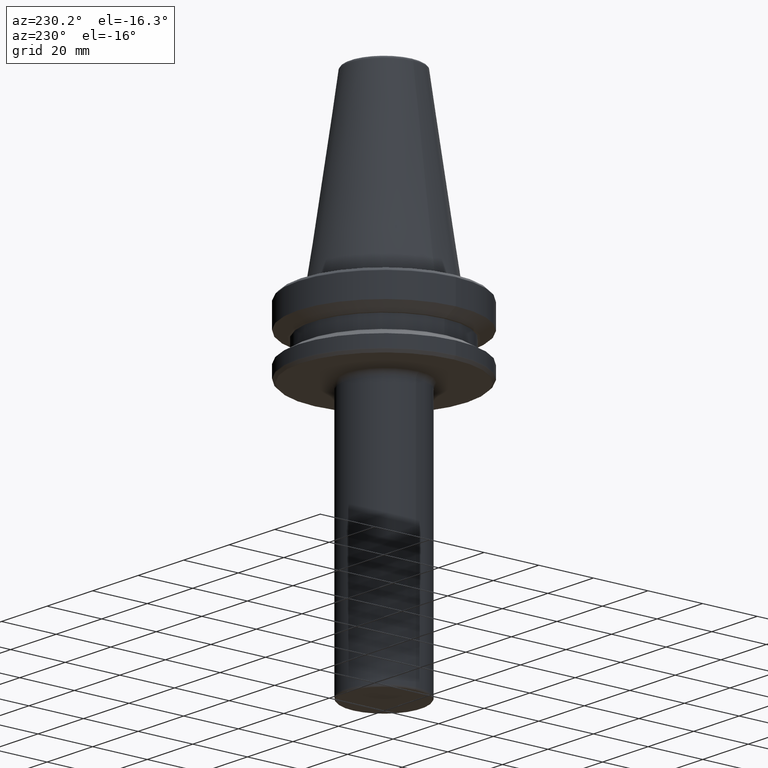
[diagram: clean part render]
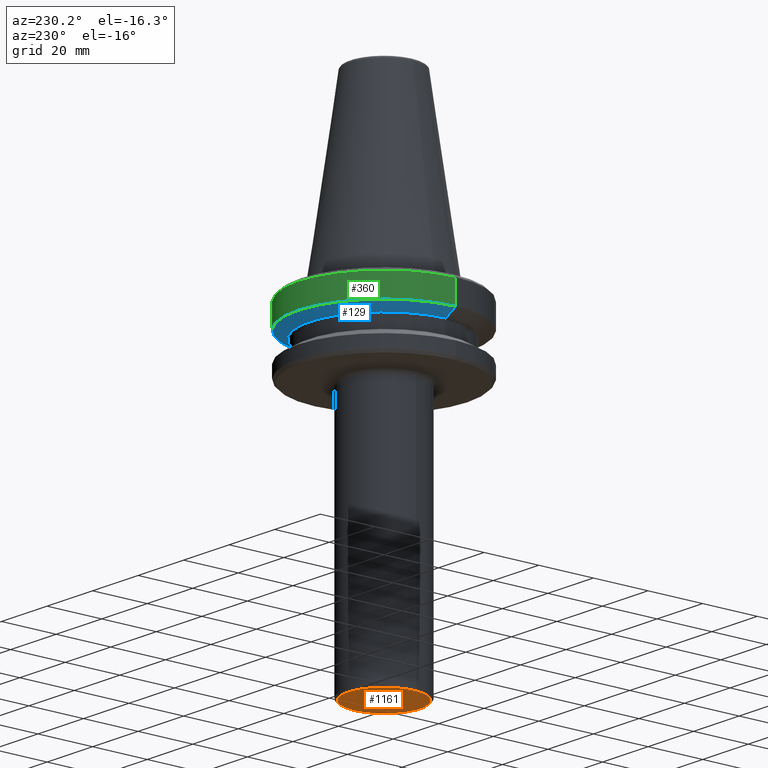
[diagram: same view with three faces highlighted in distinct colors, each labeled with its STEP entity id]
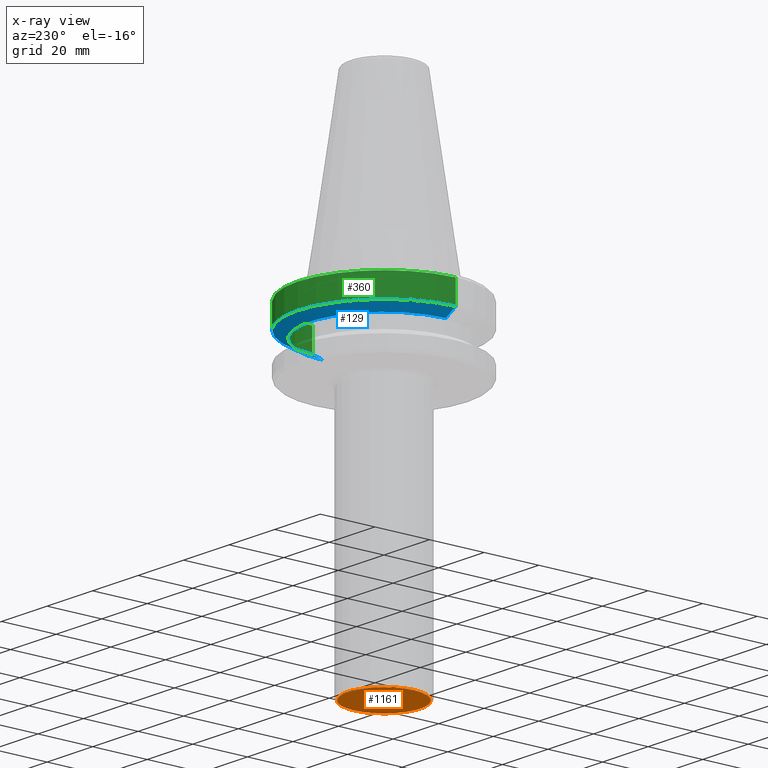
[diagram: x-ray of the same camera — body ghosted, the three highlighted faces saturated]
A machine part, auxiliary view with three faces highlighted in distinct colors.
The next image is the same camera in x-ray (body ghosted, the three faces saturated) — at least one of them is partly hidden behind the body in this view.
Their STEP definitions:

[orange] entity #1161 — the highlighted planar face has unit normal (0, -0, 1).
#3 = CARTESIAN_POINT ( 'NONE',  ( -13.20000000000000100, 1.665519646840400600E-015, -120.0000000000000100 ) ) ;
#16 = ORIENTED_EDGE ( 'NONE', *, *, #1103, .F. ) ;
#48 = CARTESIAN_POINT ( 'NONE',  ( 13.20000000000000100, 0.0000000000000000000, -120.0000000000000100 ) ) ;
#74 = VERTEX_POINT ( 'NONE', #48 ) ;
#219 = DIRECTION ( 'NONE',  ( -0.0000000000000000000, -0.0000000000000000000, 1.000000000000000000 ) ) ;
#236 = DIRECTION ( 'NONE',  ( 1.000000000000000000, 0.0000000000000000000, 0.0000000000000000000 ) ) ;
#276 = AXIS2_PLACEMENT_3D ( 'NONE', #295, #792, #236 ) ;
#285 = DIRECTION ( 'NONE',  ( -0.0000000000000000000, -0.0000000000000000000, 1.000000000000000000 ) ) ;
#295 = CARTESIAN_POINT ( 'NONE',  ( 0.0000000000000000000, -1.261617073437677800E-013, -120.0000000000000000 ) ) ;
#317 = EDGE_CURVE ( 'NONE', #74, #1063, #813, .T. ) ;
#332 = FACE_OUTER_BOUND ( 'NONE', #429, .T. ) ;
#333 = CIRCLE ( 'NONE', #820, 13.20000000000000100 ) ;
#429 = EDGE_LOOP ( 'NONE', ( #1183, #16 ) ) ;
#690 = AXIS2_PLACEMENT_3D ( 'NONE', #768, #219, #872 ) ;
#768 = CARTESIAN_POINT ( 'NONE',  ( 0.0000000000000000000, 0.0000000000000000000, -120.0000000000000100 ) ) ;
#792 = DIRECTION ( 'NONE',  ( 0.0000000000000000000, -0.0000000000000000000, 1.000000000000000000 ) ) ;
#813 = CIRCLE ( 'NONE', #690, 13.20000000000000100 ) ;
#820 = AXIS2_PLACEMENT_3D ( 'NONE', #879, #285, #989 ) ;
#872 = DIRECTION ( 'NONE',  ( 1.000000000000000000, 0.0000000000000000000, 0.0000000000000000000 ) ) ;
#879 = CARTESIAN_POINT ( 'NONE',  ( 0.0000000000000000000, 0.0000000000000000000, -120.0000000000000100 ) ) ;
#989 = DIRECTION ( 'NONE',  ( 1.000000000000000000, 0.0000000000000000000, 0.0000000000000000000 ) ) ;
#1063 = VERTEX_POINT ( 'NONE', #3 ) ;
#1103 = EDGE_CURVE ( 'NONE', #1063, #74, #333, .T. ) ;
#1161 = ADVANCED_FACE ( 'NONE', ( #332 ), #1193, .F. ) ;
#1183 = ORIENTED_EDGE ( 'NONE', *, *, #317, .F. ) ;
#1193 = PLANE ( 'NONE',  #276 ) ;

[blue] entity #129 — the highlighted conical surface has half-angle 60 deg.
#14 = AXIS2_PLACEMENT_3D ( 'NONE', #786, #231, #893 ) ;
#25 = CARTESIAN_POINT ( 'NONE',  ( -31.50000000000000000, 3.857637417314162700E-015, -11.60014666881784400 ) ) ;
#39 = EDGE_CURVE ( 'NONE', #1056, #594, #1015, .T. ) ;
#44 = CARTESIAN_POINT ( 'NONE',  ( -31.50000000000000000, 3.857637417314162700E-015, -11.60014666881784400 ) ) ;
#129 = ADVANCED_FACE ( 'NONE', ( #938 ), #913, .T. ) ;
#138 = CARTESIAN_POINT ( 'NONE',  ( 0.0000000000000000000, 0.0000000000000000000, -11.60014666881784400 ) ) ;
#216 = EDGE_CURVE ( 'NONE', #579, #1057, #869, .T. ) ;
#231 = DIRECTION ( 'NONE',  ( -0.0000000000000000000, -0.0000000000000000000, -1.000000000000000000 ) ) ;
#232 = ORIENTED_EDGE ( 'NONE', *, *, #216, .F. ) ;
#308 = ORIENTED_EDGE ( 'NONE', *, *, #336, .F. ) ;
#329 = CIRCLE ( 'NONE', #14, 31.50000000000000000 ) ;
#336 = EDGE_CURVE ( 'NONE', #1056, #579, #808, .T. ) ;
#381 = CARTESIAN_POINT ( 'NONE',  ( 0.0000000000000000000, 0.0000000000000000000, -14.10000000000000500 ) ) ;
#388 = AXIS2_PLACEMENT_3D ( 'NONE', #138, #862, #1175 ) ;
#411 = CARTESIAN_POINT ( 'NONE',  ( -27.17012701892217300, 3.592509162964584100E-015, -14.10000000000000500 ) ) ;
#471 = DIRECTION ( 'NONE',  ( -1.000000000000000000, 0.0000000000000000000, 0.0000000000000000000 ) ) ;
#579 = VERTEX_POINT ( 'NONE', #1158 ) ;
#594 = VERTEX_POINT ( 'NONE', #25 ) ;
#650 = DIRECTION ( 'NONE',  ( -0.8660254037844396000, 1.060575238724908000E-016, 0.4999999999999983900 ) ) ;
#704 = CARTESIAN_POINT ( 'NONE',  ( 31.50000000000000000, 0.0000000000000000000, -11.60014666881784400 ) ) ;
#760 = AXIS2_PLACEMENT_3D ( 'NONE', #381, #1099, #471 ) ;
#786 = CARTESIAN_POINT ( 'NONE',  ( 0.0000000000000000000, 0.0000000000000000000, -11.60014666881784400 ) ) ;
#808 = CIRCLE ( 'NONE', #760, 27.17012701892217300 ) ;
#838 = ORIENTED_EDGE ( 'NONE', *, *, #39, .T. ) ;
#862 = DIRECTION ( 'NONE',  ( 0.0000000000000000000, 0.0000000000000000000, 1.000000000000000000 ) ) ;
#869 = LINE ( 'NONE', #888, #886 ) ;
#886 = VECTOR ( 'NONE', #991, 1000.000000000000000 ) ;
#888 = CARTESIAN_POINT ( 'NONE',  ( 31.50000000000000000, 0.0000000000000000000, -11.60014666881784400 ) ) ;
#893 = DIRECTION ( 'NONE',  ( -1.000000000000000000, 0.0000000000000000000, 0.0000000000000000000 ) ) ;
#913 = CONICAL_SURFACE ( 'NONE', #388, 31.50000000000000000, 1.047197551196599600 ) ;
#922 = EDGE_LOOP ( 'NONE', ( #308, #838, #971, #232 ) ) ;
#938 = FACE_OUTER_BOUND ( 'NONE', #922, .T. ) ;
#971 = ORIENTED_EDGE ( 'NONE', *, *, #1152, .T. ) ;
#991 = DIRECTION ( 'NONE',  ( 0.8660254037844396000, 0.0000000000000000000, 0.4999999999999983900 ) ) ;
#1015 = LINE ( 'NONE', #44, #1033 ) ;
#1033 = VECTOR ( 'NONE', #650, 1000.000000000000000 ) ;
#1056 = VERTEX_POINT ( 'NONE', #411 ) ;
#1057 = VERTEX_POINT ( 'NONE', #704 ) ;
#1099 = DIRECTION ( 'NONE',  ( -0.0000000000000000000, -0.0000000000000000000, -1.000000000000000000 ) ) ;
#1152 = EDGE_CURVE ( 'NONE', #594, #1057, #329, .T. ) ;
#1158 = CARTESIAN_POINT ( 'NONE',  ( 27.17012701892217300, 0.0000000000000000000, -14.10000000000000500 ) ) ;
#1175 = DIRECTION ( 'NONE',  ( 1.000000000000000000, 0.0000000000000000000, 0.0000000000000000000 ) ) ;

[green] entity #360 — the highlighted cylindrical surface (partial cylindrical patch) has radius 31.5 mm, axis along (-0, -0, -1).
#14 = AXIS2_PLACEMENT_3D ( 'NONE', #786, #231, #893 ) ;
#22 = ORIENTED_EDGE ( 'NONE', *, *, #1152, .F. ) ;
#24 = AXIS2_PLACEMENT_3D ( 'NONE', #1092, #1179, #377 ) ;
#25 = CARTESIAN_POINT ( 'NONE',  ( -31.50000000000000000, 3.857637417314162700E-015, -11.60014666881784400 ) ) ;
#32 = ORIENTED_EDGE ( 'NONE', *, *, #107, .T. ) ;
#107 = EDGE_CURVE ( 'NONE', #1149, #1115, #939, .T. ) ;
#228 = AXIS2_PLACEMENT_3D ( 'NONE', #969, #369, #1084 ) ;
#231 = DIRECTION ( 'NONE',  ( -0.0000000000000000000, -0.0000000000000000000, -1.000000000000000000 ) ) ;
#310 = ORIENTED_EDGE ( 'NONE', *, *, #472, .F. ) ;
#329 = CIRCLE ( 'NONE', #14, 31.50000000000000000 ) ;
#360 = ADVANCED_FACE ( 'NONE', ( #795 ), #774, .T. ) ;
#369 = DIRECTION ( 'NONE',  ( -0.0000000000000000000, -0.0000000000000000000, -1.000000000000000000 ) ) ;
#377 = DIRECTION ( 'NONE',  ( -1.000000000000000000, 0.0000000000000000000, 0.0000000000000000000 ) ) ;
#424 = CARTESIAN_POINT ( 'NONE',  ( 31.50000000000000000, 3.857637417314162700E-015, 0.0000000000000000000 ) ) ;
#472 = EDGE_CURVE ( 'NONE', #1149, #594, #744, .T. ) ;
#538 = EDGE_CURVE ( 'NONE', #1115, #1057, #725, .T. ) ;
#594 = VERTEX_POINT ( 'NONE', #25 ) ;
#608 = DIRECTION ( 'NONE',  ( -0.0000000000000000000, -0.0000000000000000000, -1.000000000000000000 ) ) ;
#612 = EDGE_LOOP ( 'NONE', ( #32, #1017, #22, #310 ) ) ;
#704 = CARTESIAN_POINT ( 'NONE',  ( 31.50000000000000000, 0.0000000000000000000, -11.60014666881784400 ) ) ;
#717 = VECTOR ( 'NONE', #821, 1000.000000000000000 ) ;
#725 = LINE ( 'NONE', #424, #717 ) ;
#730 = VECTOR ( 'NONE', #608, 1000.000000000000000 ) ;
#744 = LINE ( 'NONE', #817, #730 ) ;
#774 = CYLINDRICAL_SURFACE ( 'NONE', #24, 31.50000000000000000 ) ;
#786 = CARTESIAN_POINT ( 'NONE',  ( 0.0000000000000000000, 0.0000000000000000000, -11.60014666881784400 ) ) ;
#795 = FACE_OUTER_BOUND ( 'NONE', #612, .T. ) ;
#817 = CARTESIAN_POINT ( 'NONE',  ( -31.50000000000000000, 0.0000000000000000000, 0.0000000000000000000 ) ) ;
#821 = DIRECTION ( 'NONE',  ( -0.0000000000000000000, -0.0000000000000000000, -1.000000000000000000 ) ) ;
#885 = CARTESIAN_POINT ( 'NONE',  ( -31.50000000000000000, 0.0000000000000000000, -3.165685424949240100 ) ) ;
#893 = DIRECTION ( 'NONE',  ( -1.000000000000000000, 0.0000000000000000000, 0.0000000000000000000 ) ) ;
#939 = CIRCLE ( 'NONE', #228, 31.50000000000000000 ) ;
#969 = CARTESIAN_POINT ( 'NONE',  ( 0.0000000000000000000, 0.0000000000000000000, -3.165685424949240100 ) ) ;
#1017 = ORIENTED_EDGE ( 'NONE', *, *, #538, .T. ) ;
#1057 = VERTEX_POINT ( 'NONE', #704 ) ;
#1084 = DIRECTION ( 'NONE',  ( -1.000000000000000000, 0.0000000000000000000, 0.0000000000000000000 ) ) ;
#1092 = CARTESIAN_POINT ( 'NONE',  ( 0.0000000000000000000, 0.0000000000000000000, 0.0000000000000000000 ) ) ;
#1106 = CARTESIAN_POINT ( 'NONE',  ( 31.50000000000000000, 3.857637417314162700E-015, -3.165685424949240100 ) ) ;
#1115 = VERTEX_POINT ( 'NONE', #1106 ) ;
#1149 = VERTEX_POINT ( 'NONE', #885 ) ;
#1152 = EDGE_CURVE ( 'NONE', #594, #1057, #329, .T. ) ;
#1179 = DIRECTION ( 'NONE',  ( -0.0000000000000000000, -0.0000000000000000000, -1.000000000000000000 ) ) ;